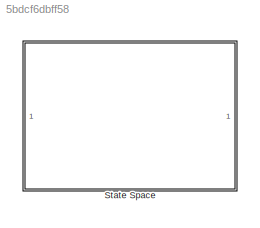
MODEL slx_5bdcf6dbff58
KIND model
CONFIG AbsTol = auto
CONFIG EnableMultiTasking = off
CONFIG FixedStep = auto
CONFIG MaxStep = auto
CONFIG MinStep = auto
CONFIG RelTol = 1e-3
CONFIG SampleTimeConstraint = Unconstrained
CONFIG Solver = VariableStepAuto
CONFIG SolverName = VariableStepAuto
CONFIG StartTime = 0.0
CONFIG StopTime = 10.0
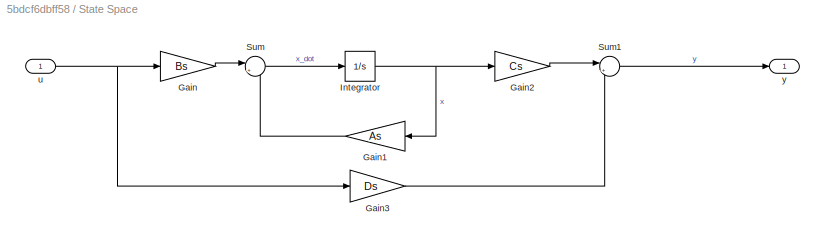
BLOCK [SubSystem] State Space
  Ports = [1, 1]
  RequestExecContextInheritance = off
BLOCK [Gain] State Space/Gain
  Gain = Bs
  Multiplication = Matrix(K*u)
  OutDataTypeStr = Inherit: Inherit via internal rule
  ParamDataTypeStr = Inherit: Inherit via internal rule
  SaturateOnIntegerOverflow = off
BLOCK [Gain] State Space/Gain1
  Gain = As
  Multiplication = Matrix(K*u)
  OutDataTypeStr = Inherit: Inherit via internal rule
  ParamDataTypeStr = Inherit: Inherit via internal rule
  SaturateOnIntegerOverflow = off
BLOCK [Gain] State Space/Gain2
  Gain = Cs
  Multiplication = Matrix(K*u)
  OutDataTypeStr = Inherit: Inherit via internal rule
  ParamDataTypeStr = Inherit: Inherit via internal rule
  SaturateOnIntegerOverflow = off
BLOCK [Gain] State Space/Gain3
  Gain = Ds
  Multiplication = Matrix(K*u)
  OutDataTypeStr = Inherit: Inherit via internal rule
  ParamDataTypeStr = Inherit: Inherit via internal rule
  SaturateOnIntegerOverflow = off
BLOCK [Integrator] State Space/Integrator
  Ports = [1, 1]
BLOCK [Sum] State Space/Sum
  IconShape = round
  InputSameDT = off
  Inputs = |++
  OutDataTypeStr = Inherit: Inherit via internal rule
  Ports = [2, 1]
  SaturateOnIntegerOverflow = off
BLOCK [Sum] State Space/Sum1
  IconShape = round
  InputSameDT = off
  Inputs = |++
  OutDataTypeStr = Inherit: Inherit via internal rule
  Ports = [2, 1]
  SaturateOnIntegerOverflow = off
BLOCK [Inport] State Space/u
  IconDisplay = Port number
BLOCK [Outport] State Space/y
  IconDisplay = Port number
LINE State Space/Gain1:1 -> State Space/Sum:2
LINE State Space/Gain2:1 -> State Space/Sum1:1
LINE State Space/Gain3:1 -> State Space/Sum1:2
LINE State Space/Gain:1 -> State Space/Sum:1
NET State Space/Integrator:1 -> State Space/Gain1:1, State Space/Gain2:1
LINE State Space/Sum1:1 -> State Space/y:1
LINE State Space/Sum:1 -> State Space/Integrator:1
NET State Space/u:1 -> State Space/Gain3:1, State Space/Gain:1
note: NET lines group one-source signal fan-out (src -> all destinations, sorted); 1:1 wires keep LINE
